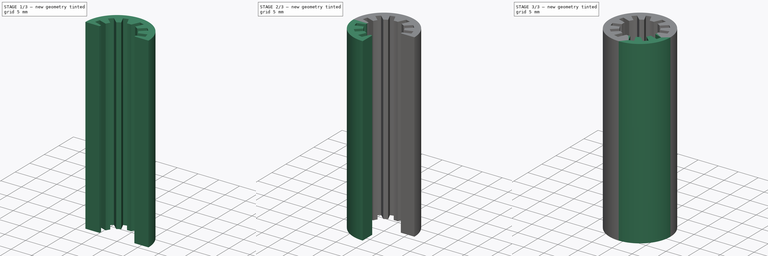
[diagram: build sequence overview — one tinted view per stage of 3, left to right]
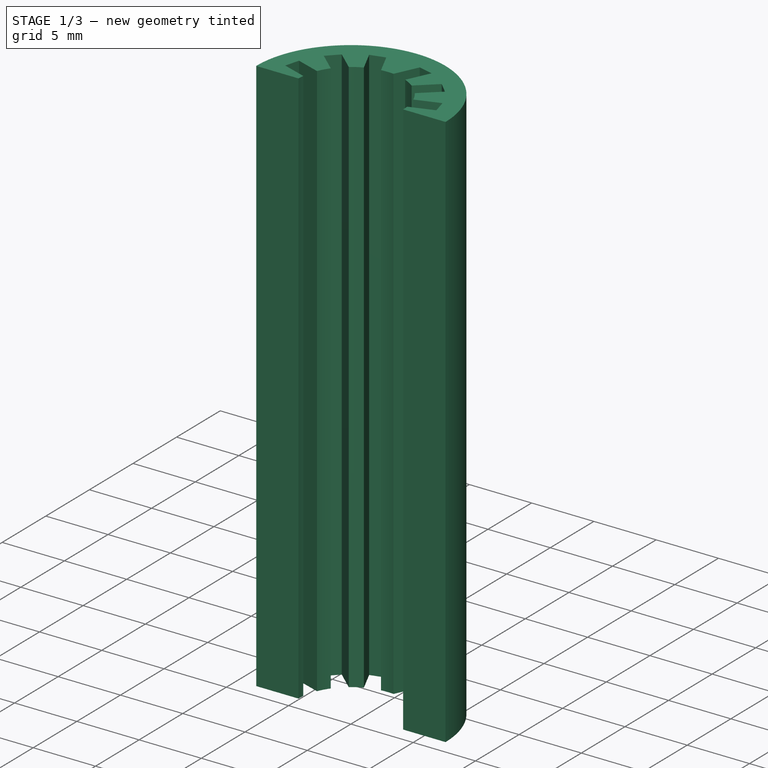
[diagram: stage 1 of 3 — iso view after this stage's code; geometry added in this stage tinted green]
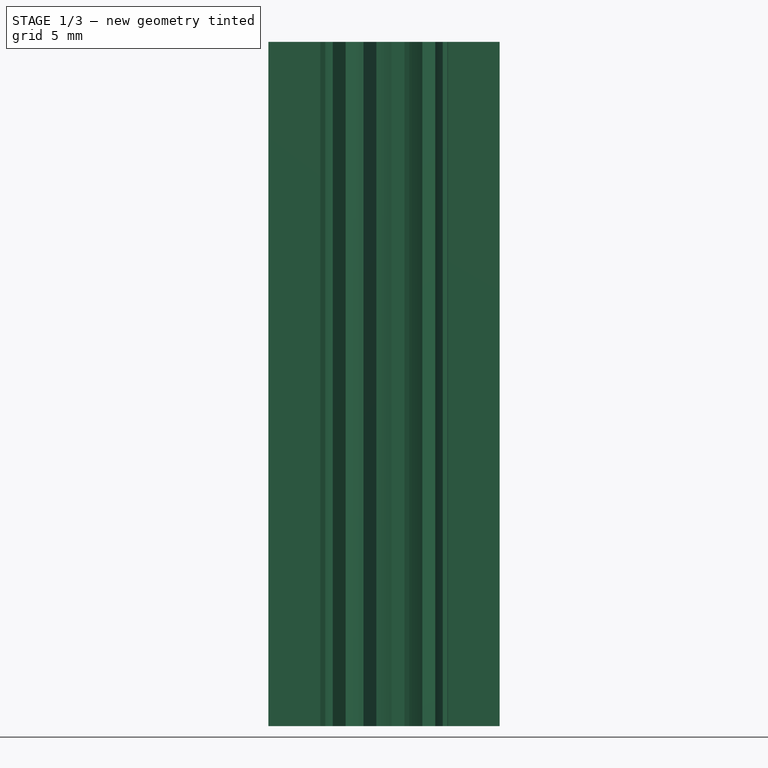
[diagram: stage 1 of 3 — front view after this stage's code; geometry added in this stage tinted green]
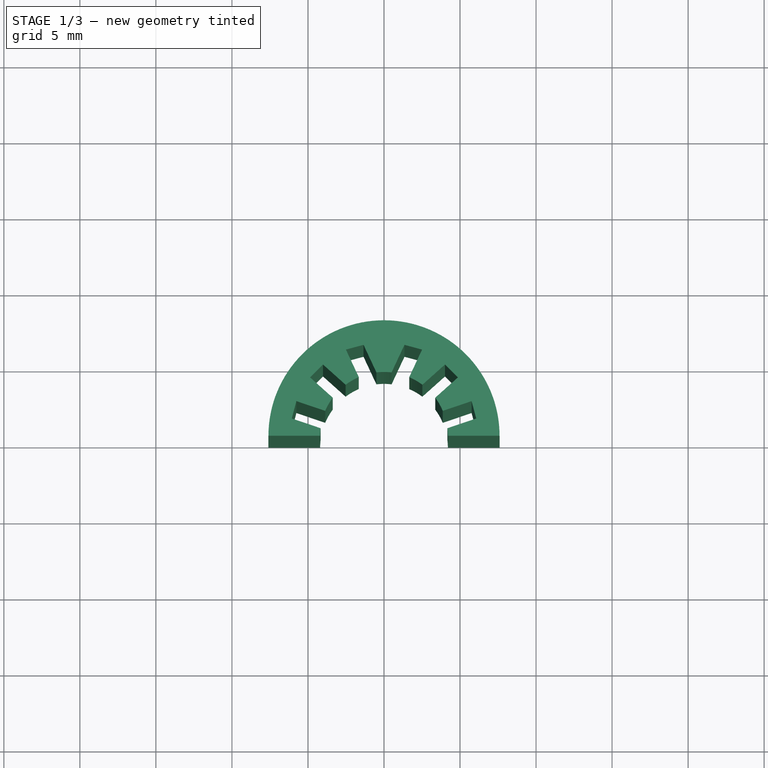
[diagram: stage 1 of 3 — top view after this stage's code; geometry added in this stage tinted green]
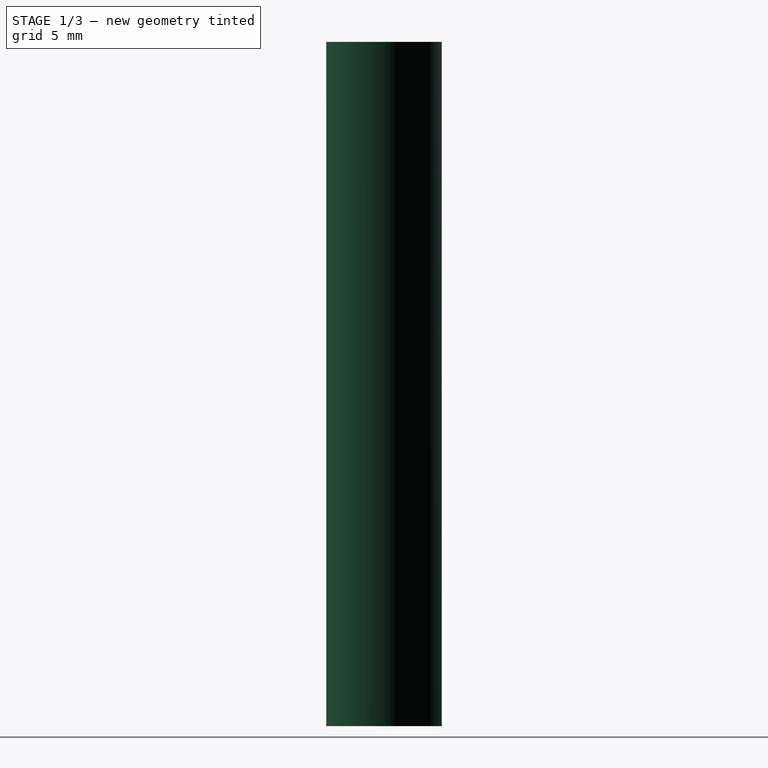
[diagram: stage 1 of 3 — right view after this stage's code; geometry added in this stage tinted green]
FCSTD DOCUMENT  (FreeCAD 0.16R6707 (Git))
Label: 8mm_Bush
License: CreativeCommons Attribution
LicenseURL: http://creativecommons.org/licenses/by/4.0/
objects: Sketcher::SketchObject×2, PartDesign::Pad×2, PartDesign::Mirrored×2, Part::MultiFuse×1
note: 9 computed .brp shape members not serialized (recipe doc carries the construction recipe); baked Part::Feature solids carry a one-line shape summary decoded from their .brp

FEATURE [Sketcher::SketchObject] Sketch001
  Placement = pos=(0,0,0) rot=(0,0,-1;1.5708rad)
  sketch-geometry (16):
    g0: ArcOfCircle CenterX=0 CenterY=0 CenterZ=0 NormalX=0 NormalY=0 NormalZ=1 Radius=7.6 StartAngle=1.5708 EndAngle=3.14159
    g1: ArcOfCircle CenterX=0 CenterY=0 CenterZ=0 NormalX=0 NormalY=0 NormalZ=1 Radius=4.2 StartAngle=1.5708 EndAngle=1.68991
    g2: LineSegment StartX=-7.6 StartY=-2e-12 StartZ=0 EndX=-4.2 EndY=-1e-12 EndZ=0
    g3: LineSegment StartX=-1e-12 StartY=4.2 StartZ=0 EndX=-1e-12 EndY=7.6 EndZ=0
    g4: LineSegment StartX=-0.499113 StartY=4.17024 StartZ=0 EndX=-1.14141 EndY=6.0643 EndZ=0
    g5: LineSegment StartX=-1.14141 StartY=6.0643 StartZ=0 EndX=-2.28159 EndY=5.76093 EndZ=0
    g6: LineSegment StartX=-2.28159 StartY=5.76093 StartZ=0 EndX=-1.63929 EndY=3.86688 EndZ=0
    g7: ArcOfCircle CenterX=0 CenterY=0 CenterZ=0 NormalX=0 NormalY=0 NormalZ=1 Radius=4.2 StartAngle=1.97176 EndAngle=2.21042
    g8: LineSegment StartX=-2.50696 StartY=3.36974 StartZ=0 EndX=-3.8402 EndY=4.86053 EndZ=0
    g9: LineSegment StartX=-3.8402 StartY=4.86053 StartZ=0 EndX=-4.69079 EndY=4.01406 EndZ=0
    g10: LineSegment StartX=-4.69079 StartY=4.01406 StartZ=0 EndX=-3.35755 EndY=2.52327 EndZ=0
    g11: ArcOfCircle CenterX=0 CenterY=0 CenterZ=0 NormalX=0 NormalY=0 NormalZ=1 Radius=4.2 StartAngle=2.49712 EndAngle=2.73578
    g12: LineSegment StartX=-3.85888 StartY=1.65802 StartZ=0 EndX=-5.67098 EndY=2.50436 EndZ=0
    g13: LineSegment StartX=-5.67098 StartY=2.50436 StartZ=0 EndX=-5.98234 EndY=1.34545 EndZ=0
    g14: LineSegment StartX=-5.98234 StartY=1.34545 StartZ=0 EndX=-4.17024 EndY=0.499113 EndZ=0
    g15: ArcOfCircle CenterX=0 CenterY=0 CenterZ=0 NormalX=0 NormalY=0 NormalZ=1 Radius=4.2 StartAngle=3.02247 EndAngle=3.14159
  constraints (48):
    c: Coincident(g0,g-1)
    c: PointOnObject(g0,g-1)
    c: Radius(g0) = 7.6
    c: PointOnObject(g15,g-1)
    c: Radius(g1) = 4.2
    c: Coincident(g1,g-1)
    c: Coincident(g2,g0)
    c: Coincident(g2,g15)
    c: Coincident(g3,g1)
    c: Coincident(g6,g5)
    c: Equal(g1,g7)
    c: Coincident(g1,g4)
    c: Coincident(g7,g6)
    c: Coincident(g1,g7)
    c: Coincident(g5,g4)
    c: Parallel(g6,g4)
    c: Coincident(g3,g0)
    c: Vertical(g3)
    c: PointOnObject(g1,g-2)
    c: Coincident(g8,g9)
    c: Coincident(g9,g10)
    c: Equal(g7,g11)
    c: Coincident(g7,g8)
    c: Coincident(g11,g10)
    c: Coincident(g7,g11)
    c: Parallel(g10,g8)
    c: Equal(g8,g6)
    c: Equal(g4,g6)
    c: Equal(g10,g8)
    c: Coincident(g12,g13)
    c: Coincident(g13,g14)
    c: Parallel(g12,g14)
    c: Equal(g11,g15)
    c: Coincident(g11,g12)
    c: Coincident(g15,g14)
    c: Coincident(g11,g15)
    c: Equal(g12,g14)
    c: Equal(g14,g10)
    c: Distance(g4,g1) = 2
    c: Distance(g11,g10) = 1
    c: Distance(g7,g6) = 1
    c: Distance(g1,g1) = 0.5
    c: Distance(g14,g2) = 0.5
    c: Distance(g10,g7) = 1.2
    c: Distance(g14,g11) = 1.2
    c: Distance(g12,g9) = 1.8
    c: Distance(g8,g5) = 1.8
    c: DistanceX(g4,g0) = 1.14141
FEATURE [PartDesign::Pad] Pad001
  Length = 45
  Length2 = 100
  Placement = pos=(0,0,0) rot=(0,0,-1;1.5708rad)
  Sketch = -> Sketch001
  Type = 0
FEATURE [PartDesign::Mirrored] Mirrored001
  MirrorPlane = -> Sketch001 [H_Axis]
  Originals = -> [Pad001]
  Placement = pos=(0,0,0) rot=(0,0,-1;1.5708rad)
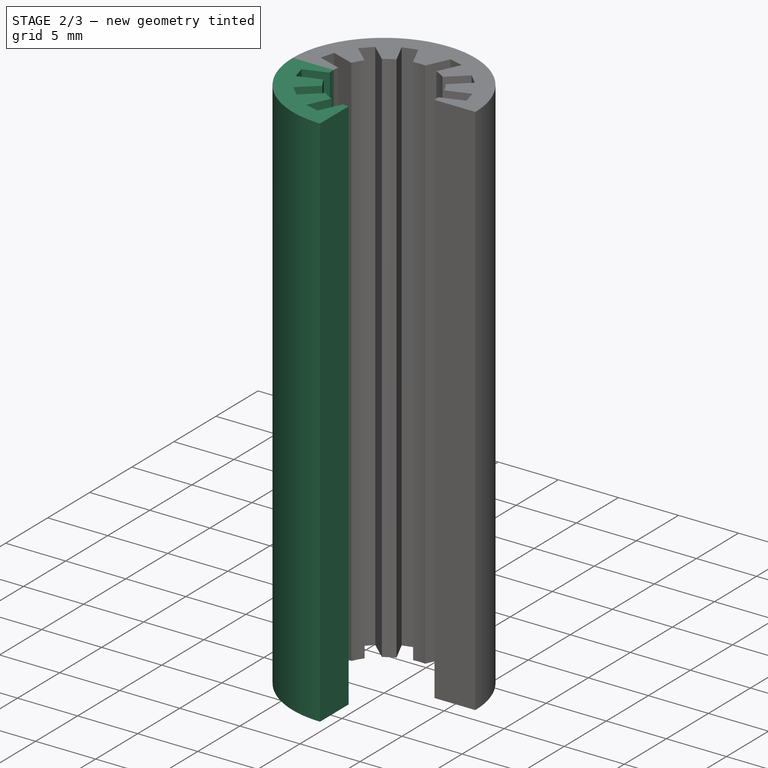
[diagram: stage 2 of 3 — iso view after this stage's code; geometry added in this stage tinted green]
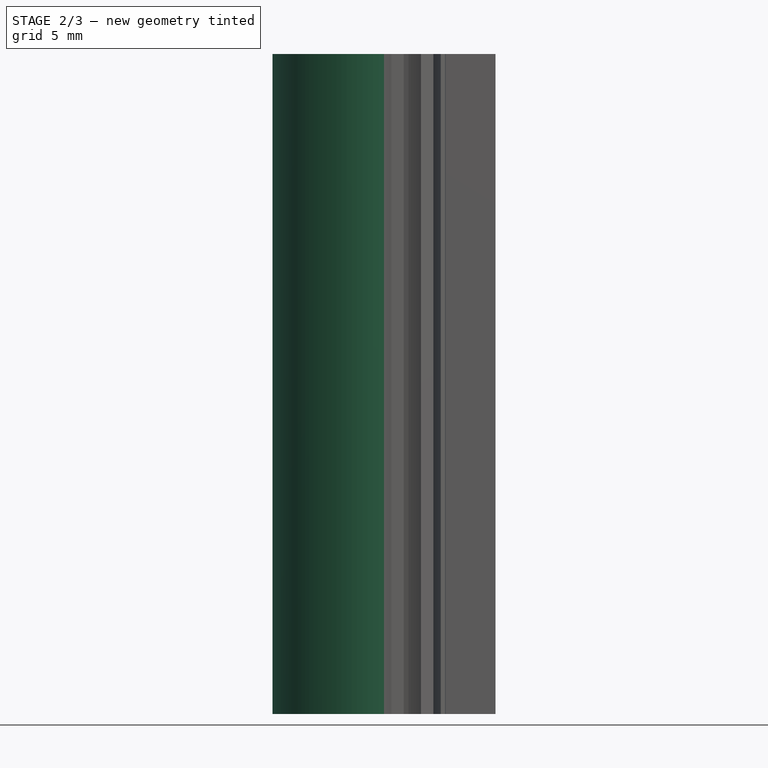
[diagram: stage 2 of 3 — front view after this stage's code; geometry added in this stage tinted green]
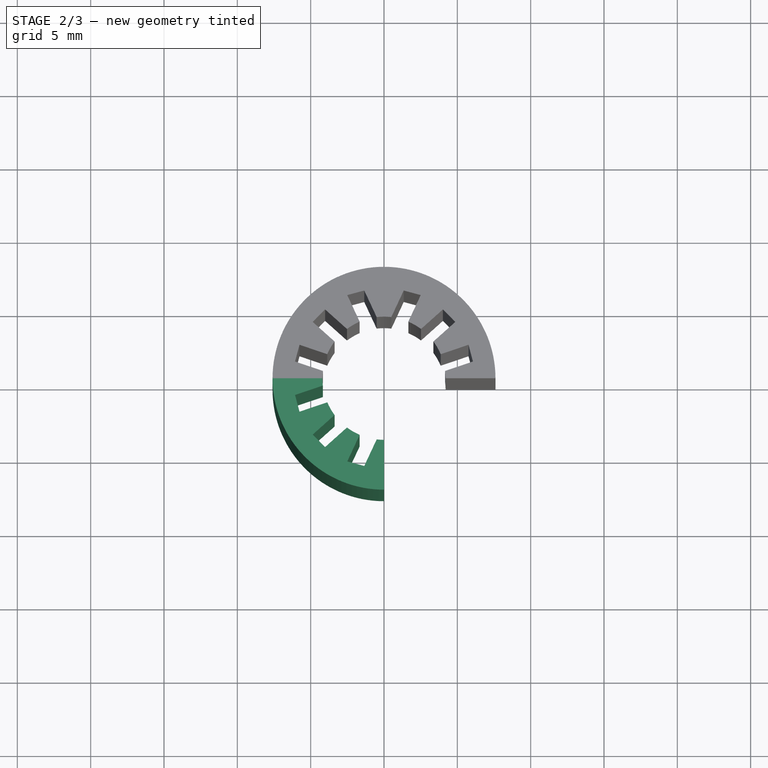
[diagram: stage 2 of 3 — top view after this stage's code; geometry added in this stage tinted green]
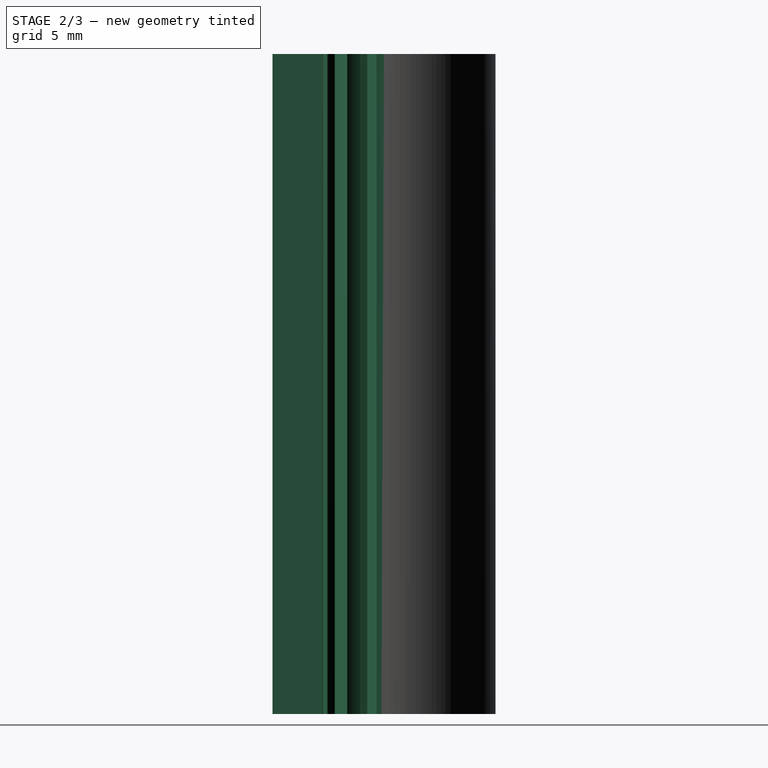
[diagram: stage 2 of 3 — right view after this stage's code; geometry added in this stage tinted green]
FEATURE [Sketcher::SketchObject] Sketch
  Placement = pos=(0,0,0) rot=(0,0,1;1.5708rad)
  sketch-geometry (16):
    g0: ArcOfCircle CenterX=0 CenterY=0 CenterZ=0 NormalX=0 NormalY=0 NormalZ=1 Radius=7.6 StartAngle=1.5708 EndAngle=3.14159
    g1: ArcOfCircle CenterX=0 CenterY=0 CenterZ=0 NormalX=0 NormalY=0 NormalZ=1 Radius=4.2 StartAngle=1.5708 EndAngle=1.68991
    g2: LineSegment StartX=-7.6 StartY=0 StartZ=0 EndX=-4.2 EndY=0 EndZ=0
    g3: LineSegment StartX=0 StartY=4.2 StartZ=0 EndX=0 EndY=7.6 EndZ=0
    g4: LineSegment StartX=-0.499113 StartY=4.17024 StartZ=0 EndX=-1.14141 EndY=6.0643 EndZ=0
    g5: LineSegment StartX=-1.14141 StartY=6.0643 StartZ=0 EndX=-2.28159 EndY=5.76093 EndZ=0
    g6: LineSegment StartX=-2.28159 StartY=5.76093 StartZ=0 EndX=-1.63929 EndY=3.86688 EndZ=0
    g7: ArcOfCircle CenterX=0 CenterY=0 CenterZ=0 NormalX=0 NormalY=0 NormalZ=1 Radius=4.2 StartAngle=1.97176 EndAngle=2.21042
    g8: LineSegment StartX=-2.50696 StartY=3.36974 StartZ=0 EndX=-3.8402 EndY=4.86053 EndZ=0
    g9: LineSegment StartX=-3.8402 StartY=4.86053 StartZ=0 EndX=-4.69079 EndY=4.01406 EndZ=0
    g10: LineSegment StartX=-4.69079 StartY=4.01406 StartZ=0 EndX=-3.35755 EndY=2.52327 EndZ=0
    g11: ArcOfCircle CenterX=0 CenterY=0 CenterZ=0 NormalX=0 NormalY=0 NormalZ=1 Radius=4.2 StartAngle=2.49712 EndAngle=2.73578
    g12: LineSegment StartX=-3.85888 StartY=1.65802 StartZ=0 EndX=-5.67098 EndY=2.50436 EndZ=0
    g13: LineSegment StartX=-5.67098 StartY=2.50436 StartZ=0 EndX=-5.98234 EndY=1.34545 EndZ=0
    g14: LineSegment StartX=-5.98234 StartY=1.34545 StartZ=0 EndX=-4.17024 EndY=0.499113 EndZ=0
    g15: ArcOfCircle CenterX=0 CenterY=0 CenterZ=0 NormalX=0 NormalY=0 NormalZ=1 Radius=4.2 StartAngle=3.02247 EndAngle=3.14159
  constraints (48):
    c: Coincident(g0,g-1)
    c: PointOnObject(g0,g-1)
    c: Radius(g0) = 7.6
    c: PointOnObject(g15,g-1)
    c: Radius(g1) = 4.2
    c: Coincident(g1,g-1)
    c: Coincident(g2,g0)
    c: Coincident(g2,g15)
    c: Coincident(g3,g1)
    c: Coincident(g6,g5)
    c: Equal(g1,g7)
    c: Coincident(g1,g4)
    c: Coincident(g7,g6)
    c: Coincident(g1,g7)
    c: Coincident(g5,g4)
    c: Parallel(g6,g4)
    c: Coincident(g3,g0)
    c: Vertical(g3)
    c: PointOnObject(g1,g-2)
    c: Coincident(g8,g9)
    c: Coincident(g9,g10)
    c: Equal(g7,g11)
    c: Coincident(g7,g8)
    c: Coincident(g11,g10)
    c: Coincident(g7,g11)
    c: Parallel(g10,g8)
    c: Equal(g8,g6)
    c: Equal(g4,g6)
    c: Equal(g10,g8)
    c: Coincident(g12,g13)
    c: Coincident(g13,g14)
    c: Parallel(g12,g14)
    c: Equal(g11,g15)
    c: Coincident(g11,g12)
    c: Coincident(g15,g14)
    c: Coincident(g11,g15)
    c: Equal(g12,g14)
    c: Equal(g14,g10)
    c: Distance(g4,g1) = 2
    c: Distance(g11,g10) = 1
    c: Distance(g7,g6) = 1
    c: Distance(g1,g1) = 0.5
    c: Distance(g14,g2) = 0.5
    c: Distance(g10,g7) = 1.2
    c: Distance(g14,g11) = 1.2
    c: Distance(g12,g9) = 1.8
    c: Distance(g8,g5) = 1.8
    c: DistanceX(g4,g0) = 1.14141
FEATURE [PartDesign::Pad] Pad
  Length = 45
  Length2 = 100
  Placement = pos=(0,0,0) rot=(0,0,1;1.5708rad)
  Sketch = -> Sketch
  Type = 0
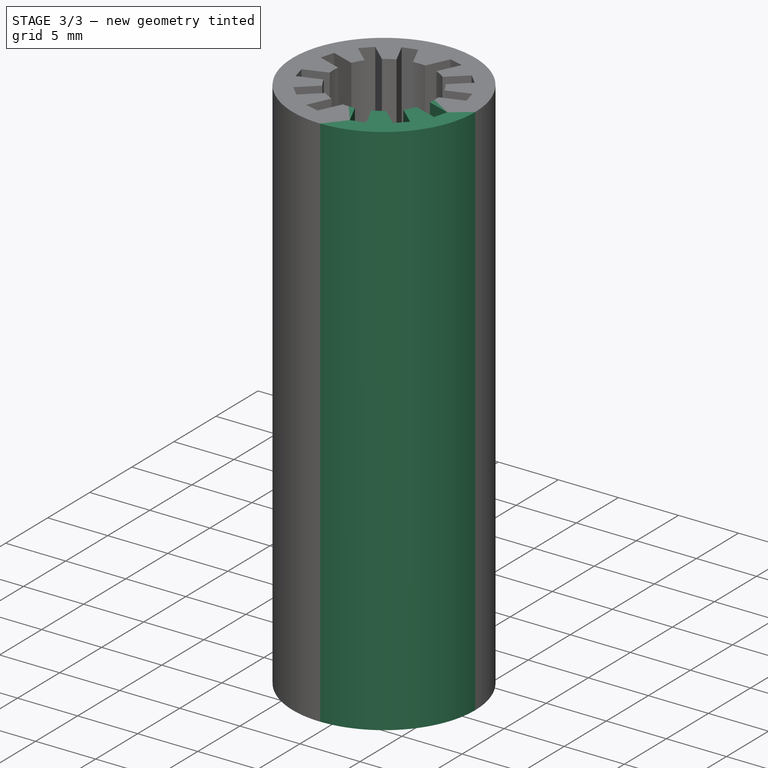
[diagram: stage 3 of 3 — iso view after this stage's code; geometry added in this stage tinted green]
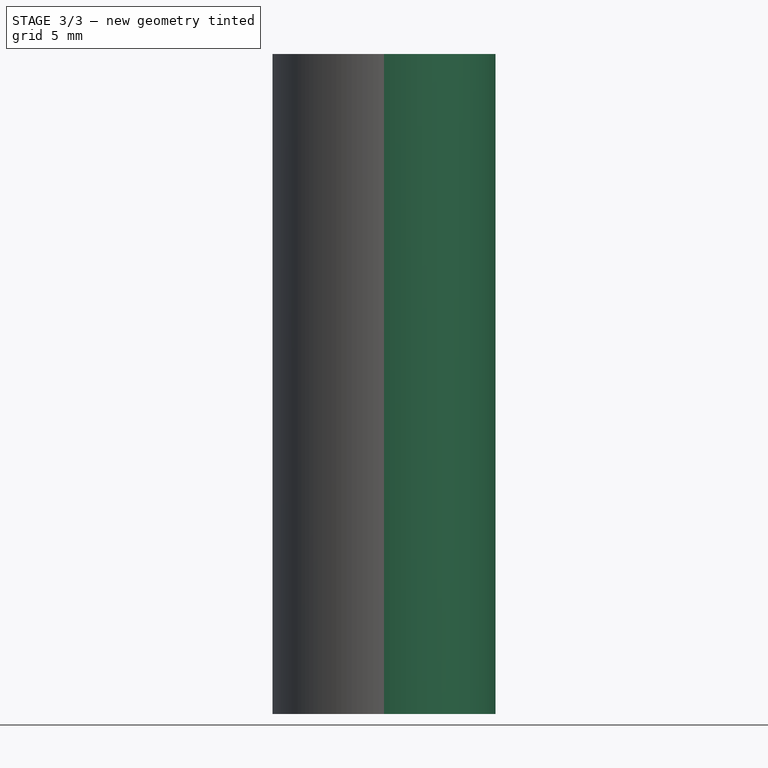
[diagram: stage 3 of 3 — front view after this stage's code; geometry added in this stage tinted green]
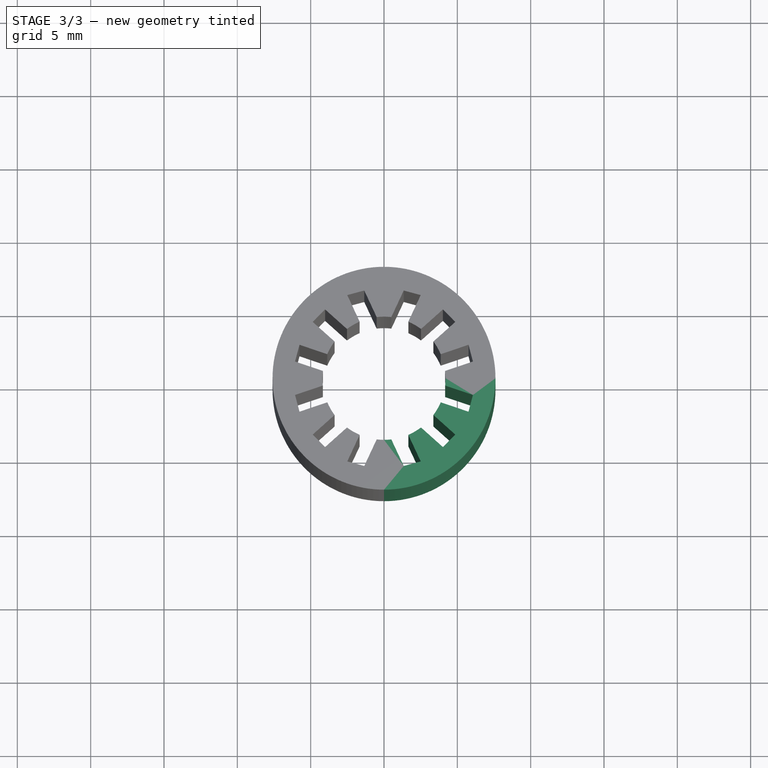
[diagram: stage 3 of 3 — top view after this stage's code; geometry added in this stage tinted green]
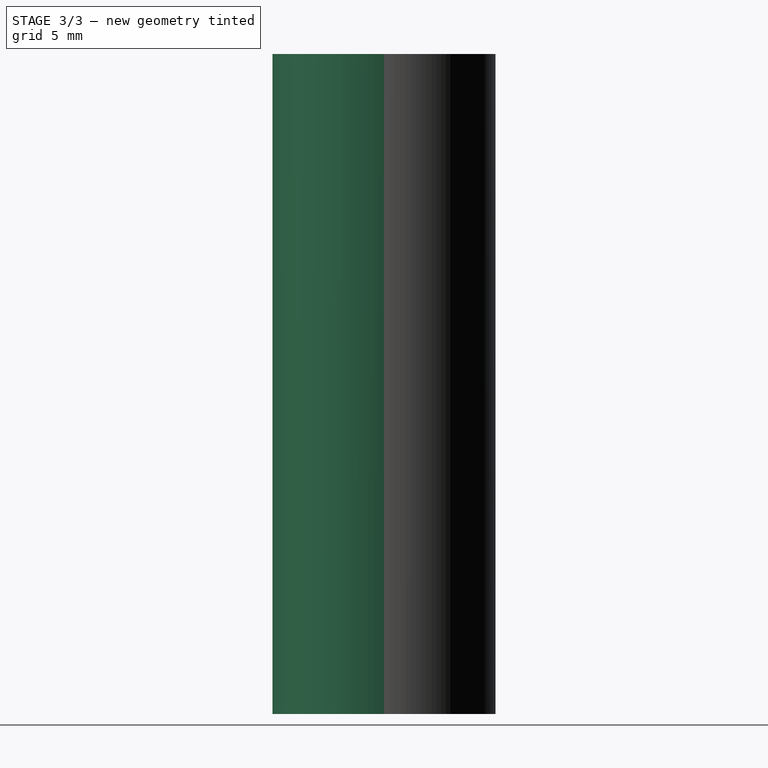
[diagram: stage 3 of 3 — right view after this stage's code; geometry added in this stage tinted green]
FEATURE [PartDesign::Mirrored] Mirrored
  MirrorPlane = -> Sketch [H_Axis]
  Originals = -> [Pad]
  Placement = pos=(0,0,0) rot=(0,0,1;1.5708rad)
FEATURE [Part::MultiFuse] Fusion
  Shapes = -> [Mirrored001,Mirrored]
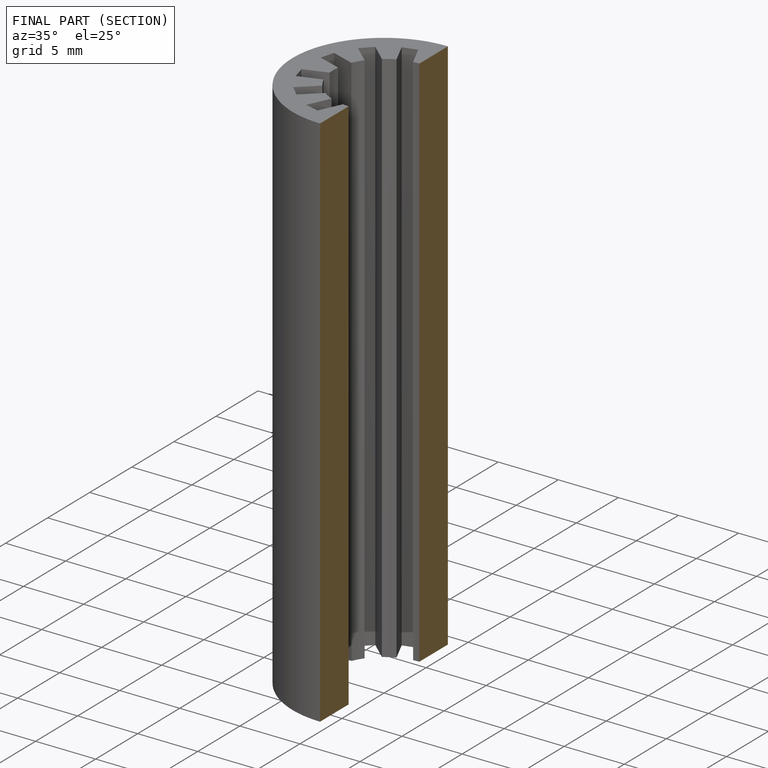
[diagram: finished part — half-section view (interior)]
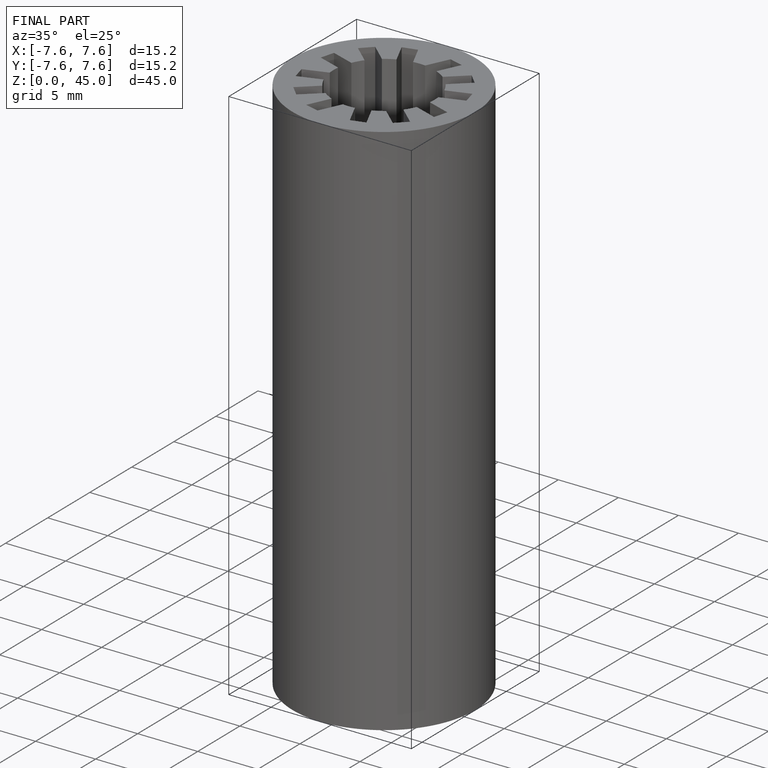
[diagram: finished part — iso view with bounding-box wireframe]
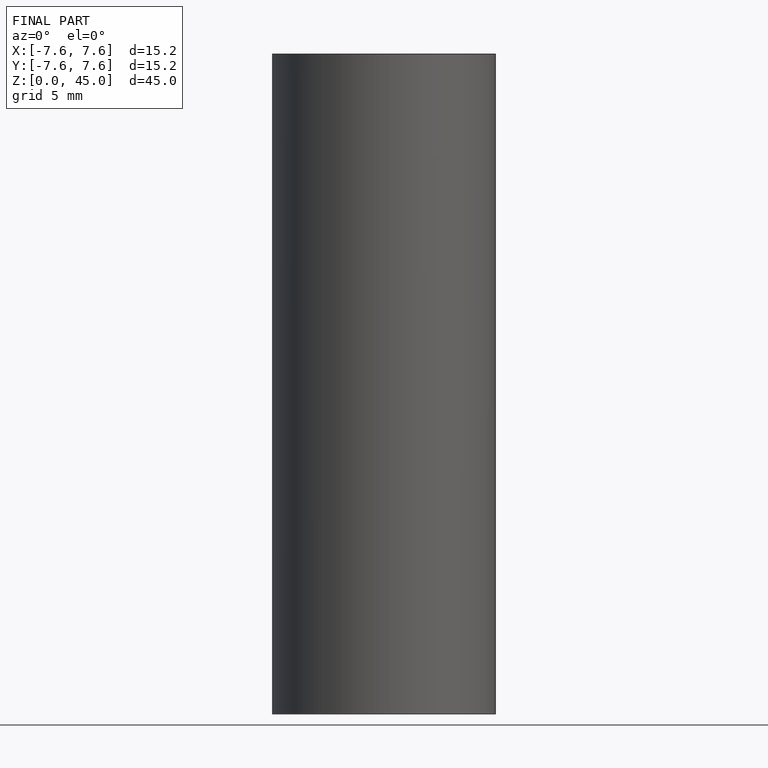
[diagram: finished part — front view with bounding-box wireframe]
